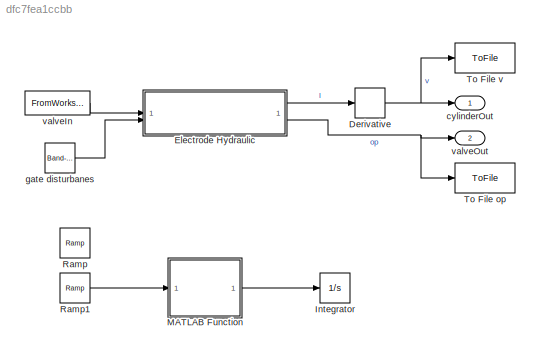
MODEL slx_dfc7fea1ccbb
KIND model
CONFIG AbsTol = auto
CONFIG EnableMultiTasking = off
CONFIG FixedStep = 1e-5
CONFIG MaxStep = auto
CONFIG MinStep = auto
CONFIG RelTol = 1e-4
CONFIG SampleTimeConstraint = Unconstrained
CONFIG SolverName = VariableStepAuto
CONFIG StartTime = 0.0
CONFIG StopTime = 10
WORKSPACE source: mxarray member
WORKSPACE GateChoice: string (value not decoded)
BLOCK [Derivative] Derivative
BLOCK [SubSystem] Electrode Hydraulic
  ReferencedSubsystem = Electrode_Hydraulic
BLOCK [Integrator] Integrator
  Commented = on
  InitialCondition = 0.5
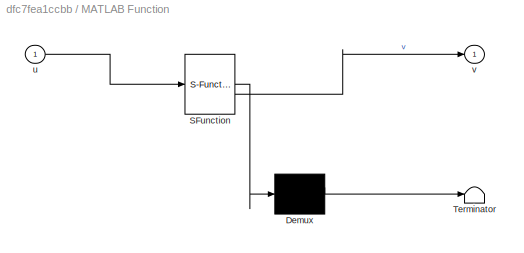
BLOCK [SubSystem] MATLAB Function
  Commented = on
  ErrorFcn = Stateflow.Translate.translate
  PermitHierarchicalResolution = ExplicitOnly
  SFBlockType = MATLAB Function
  TreatAsAtomicUnit = on
BLOCK [Demux] MATLAB Function/ Demux 
  Outputs = 1
BLOCK [S-Function] MATLAB Function/ SFunction 
  EnableBusSupport = off
  FunctionName = sf_sfun
  PortCounts = [1 2]
  SFcnIsStateOwnerBlock = off
  SFunctionDeploymentMode = off
  Tag = Stateflow S-Function 2
BLOCK [Terminator] MATLAB Function/ Terminator 
BLOCK [Inport] MATLAB Function/u
BLOCK [Outport] MATLAB Function/v
BLOCK [Reference] Ramp  REF=simulink/Sources/Ramp
  Commented = on
  SourceBlock = simulink/Sources/Ramp
  SourceType = Ramp
BLOCK [Reference] Ramp1  REF=simulink/Sources/Ramp
  Commented = on
  SourceBlock = simulink/Sources/Ramp
  SourceType = Ramp
BLOCK [ToFile] To File op
  Filename = op_tmp.mat
  MatrixName = op
  SaveFormat = Timeseries
BLOCK [ToFile] To File v
  Filename = v_tmp.mat
  MatrixName = v
  SaveFormat = Timeseries
BLOCK [Outport] cylinderOut
BLOCK [Reference] gate disturbanes  REF=simulink/Sources/Band-Limited
White Noise
  SourceBlock = simulink/Sources/Band-Limited\nWhite Noise
  SourceType = Band-Limited White Noise.
BLOCK [FromWorkspace] valveIn
  VariableName = simin
BLOCK [Outport] valveOut
  Port = 2
NET Derivative:1 -> To File v:1, cylinderOut:1
LINE Electrode Hydraulic:1 -> Derivative:1
NET Electrode Hydraulic:2 -> To File op:1, valveOut:1
LINE MATLAB Function:1 -> Integrator:1
LINE Ramp1:1 -> MATLAB Function:1
LINE gate disturbanes:1 -> Electrode Hydraulic:2
LINE valveIn:1 -> Electrode Hydraulic:1
note: NET lines group one-source signal fan-out (src -> all destinations, sorted); 1:1 wires keep LINE
CHART MATLAB Function states=1 transitions=1
  STATE_LABEL 'eML_blk_kernel()'
  STATE_LABEL 'SCRIPT:\nfunction v = electrode_speed(u)\n    % Parameters\n    eps = 0.1;\n    dl = -0.5; dr = 0.5;\n    kl = 1.8; kr = 2.3;\n    Sl = -9; Sr = 12;\n    \n    % voltage-speed characteristic\n    v = zeros(1);\n    softplus_l = eps * log(1 + exp((dl - u) / eps));\n    softplus_r = eps * log(1 + exp((u - dr) / eps));\n    w_soft = kr * softplus_r - kl * softplus_l;\n    if u >= 0\n        v(1) = Sr * tanh(w_soft...<+67ch>'
CHART  states=0 transitions=0
